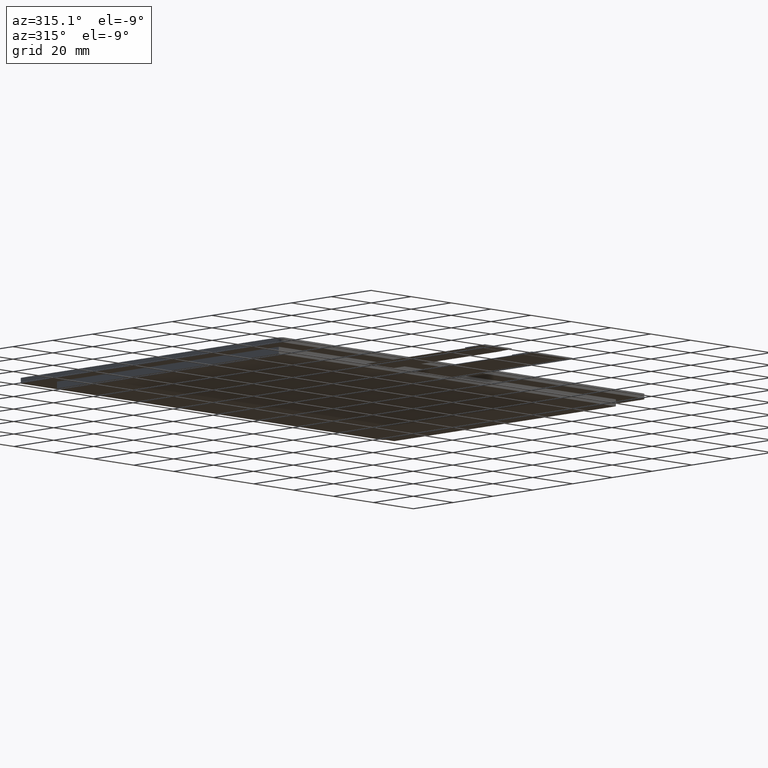
[diagram: clean part render]
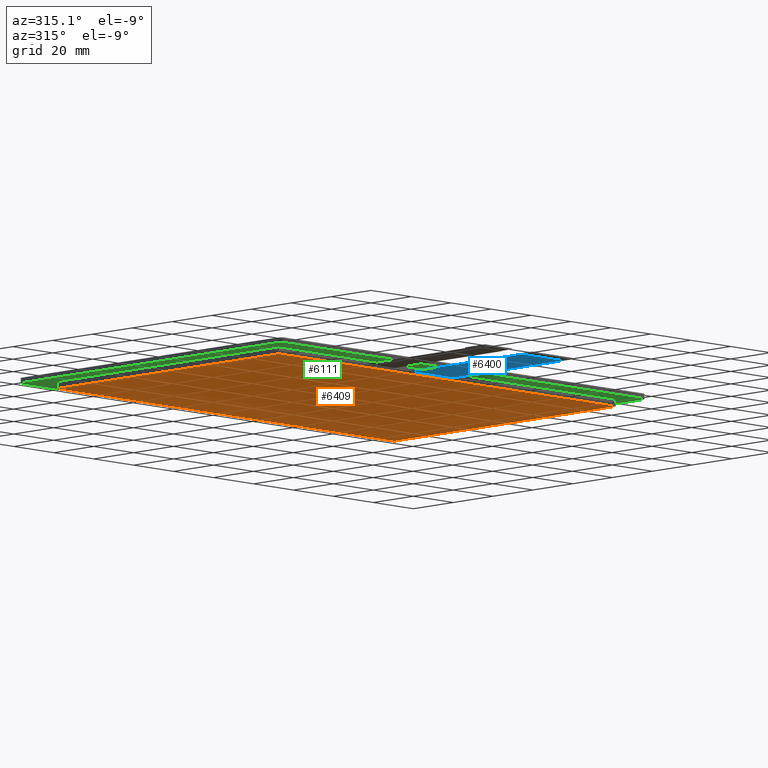
[diagram: same view with three faces highlighted in distinct colors, each labeled with its STEP entity id]
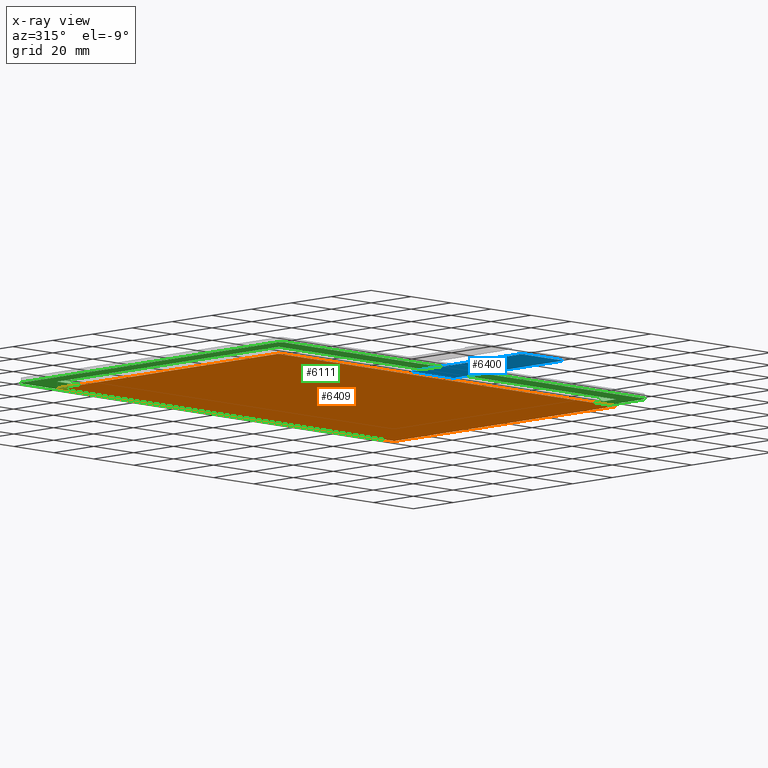
[diagram: x-ray of the same camera — body ghosted, the three highlighted faces saturated]
A machine part, auxiliary view with three faces highlighted in distinct colors.
The next image is the same camera in x-ray (body ghosted, the three faces saturated) — at least one of them is partly hidden behind the body in this view.
Their STEP definitions:

[orange] entity #6409 — the highlighted planar face has unit normal (0, 0, -1).
#355=FACE_OUTER_BOUND('',#667,.T.);
#667=EDGE_LOOP('',(#5754,#5755,#5756,#5757));
#1543=LINE('',#10078,#2431);
#1545=LINE('',#10082,#2433);
#1547=LINE('',#10086,#2435);
#1549=LINE('',#10089,#2437);
#2431=VECTOR('',#8261,10.);
#2433=VECTOR('',#8265,10.);
#2435=VECTOR('',#8269,10.);
#2437=VECTOR('',#8273,10.);
#3058=VERTEX_POINT('',#10075);
#3059=VERTEX_POINT('',#10077);
#3060=VERTEX_POINT('',#10081);
#3061=VERTEX_POINT('',#10085);
#3955=EDGE_CURVE('',#3059,#3058,#1543,.T.);
#3957=EDGE_CURVE('',#3060,#3059,#1545,.T.);
#3959=EDGE_CURVE('',#3061,#3060,#1547,.T.);
#3961=EDGE_CURVE('',#3058,#3061,#1549,.T.);
#5754=ORIENTED_EDGE('',*,*,#3961,.T.);
#5755=ORIENTED_EDGE('',*,*,#3959,.T.);
#5756=ORIENTED_EDGE('',*,*,#3957,.T.);
#5757=ORIENTED_EDGE('',*,*,#3955,.T.);
#6075=PLANE('',#6755);
#6409=ADVANCED_FACE('',(#355),#6075,.T.);
#6755=AXIS2_PLACEMENT_3D('',#10090,#8274,#8275);
#8261=DIRECTION('',(-1.59457525978478E-16,1.,0.));
#8265=DIRECTION('',(-1.,-1.57851614875615E-16,0.));
#8269=DIRECTION('',(0.,-1.,0.));
#8273=DIRECTION('',(1.,0.,0.));
#8274=DIRECTION('center_axis',(0.,0.,-1.));
#8275=DIRECTION('ref_axis',(-1.,0.,0.));
#10075=CARTESIAN_POINT('',(-84.5,53.68,-2.5));
#10077=CARTESIAN_POINT('',(-84.5,-57.72,-2.5));
#10078=CARTESIAN_POINT('',(-84.5,53.68,-2.5));
#10081=CARTESIAN_POINT('',(84.3,-57.72,-2.5));
#10082=CARTESIAN_POINT('',(-84.5,-57.72,-2.5));
#10085=CARTESIAN_POINT('',(84.3,53.68,-2.5));
#10086=CARTESIAN_POINT('',(84.3,-57.72,-2.5));
#10089=CARTESIAN_POINT('',(84.3,53.68,-2.5));
#10090=CARTESIAN_POINT('Origin',(-0.0999999999999801,-2.01999999999999,
-2.5));

[blue] entity #6400 — the highlighted planar face has unit normal (0, 0, -1).
#346=FACE_OUTER_BOUND('',#656,.T.);
#656=EDGE_LOOP('',(#5706,#5707,#5708,#5709));
#1512=LINE('',#10015,#2400);
#1523=LINE('',#10036,#2411);
#1532=LINE('',#10055,#2420);
#1536=LINE('',#10062,#2424);
#2400=VECTOR('',#8202,10.);
#2411=VECTOR('',#8217,10.);
#2420=VECTOR('',#8236,10.);
#2424=VECTOR('',#8244,10.);
#3040=VERTEX_POINT('',#10012);
#3041=VERTEX_POINT('',#10014);
#3049=VERTEX_POINT('',#10034);
#3054=VERTEX_POINT('',#10054);
#3924=EDGE_CURVE('',#3041,#3040,#1512,.T.);
#3935=EDGE_CURVE('',#3040,#3049,#1523,.T.);
#3944=EDGE_CURVE('',#3054,#3041,#1532,.T.);
#3948=EDGE_CURVE('',#3054,#3049,#1536,.T.);
#5706=ORIENTED_EDGE('',*,*,#3924,.T.);
#5707=ORIENTED_EDGE('',*,*,#3935,.T.);
#5708=ORIENTED_EDGE('',*,*,#3948,.F.);
#5709=ORIENTED_EDGE('',*,*,#3944,.T.);
#6066=PLANE('',#6746);
#6400=ADVANCED_FACE('',(#346),#6066,.T.);
#6746=AXIS2_PLACEMENT_3D('',#10061,#8242,#8243);
#8202=DIRECTION('',(-1.,0.,0.));
#8217=DIRECTION('',(-3.33066907387547E-16,1.,0.));
#8236=DIRECTION('',(2.22044604925031E-16,-1.,0.));
#8242=DIRECTION('center_axis',(0.,0.,-1.));
#8243=DIRECTION('ref_axis',(-1.,0.,0.));
#8244=DIRECTION('',(-1.,-1.57851614875615E-16,0.));
#10012=CARTESIAN_POINT('',(-17.5,-112.72,-1.35));
#10014=CARTESIAN_POINT('',(3.00000000000003,-112.72,-1.35));
#10015=CARTESIAN_POINT('',(-2.12499999999998,-112.72,-1.35));
#10034=CARTESIAN_POINT('',(-17.5,-57.72,-1.35));
#10036=CARTESIAN_POINT('',(-17.5,-57.72,-1.35));
#10054=CARTESIAN_POINT('',(3.00000000000002,-57.72,-1.35));
#10055=CARTESIAN_POINT('',(3.00000000000003,-117.72,-1.35));
#10061=CARTESIAN_POINT('Origin',(-7.24999999999998,-87.72,-1.35));
#10062=CARTESIAN_POINT('',(38.525,-57.72,-1.35));

[green] entity #6111 — the highlighted planar face has unit normal (0, 0, 1).
#51=FACE_BOUND('',#367,.T.);
#57=FACE_OUTER_BOUND('',#366,.T.);
#366=EDGE_LOOP('',(#3994,#3995,#3996,#3997,#3998,#3999,#4000,#4001));
#367=EDGE_LOOP('',(#4002,#4003,#4004,#4005));
#684=LINE('',#8334,#1572);
#686=LINE('',#8338,#1574);
#687=LINE('',#8342,#1575);
#688=LINE('',#8346,#1576);
#689=LINE('',#8350,#1577);
#690=LINE('',#8352,#1578);
#691=LINE('',#8354,#1579);
#692=LINE('',#8355,#1580);
#1572=VECTOR('',#6790,10.);
#1574=VECTOR('',#6794,10.);
#1575=VECTOR('',#6797,10.);
#1576=VECTOR('',#6800,10.);
#1577=VECTOR('',#6803,10.);
#1578=VECTOR('',#6804,10.);
#1579=VECTOR('',#6805,10.);
#1580=VECTOR('',#6806,10.);
#2454=CIRCLE('',#6444,2.);
#2455=CIRCLE('',#6447,2.);
#2456=CIRCLE('',#6448,2.);
#2457=CIRCLE('',#6449,2.);
#2478=VERTEX_POINT('',#8327);
#2479=VERTEX_POINT('',#8329);
#2480=VERTEX_POINT('',#8333);
#2481=VERTEX_POINT('',#8337);
#2482=VERTEX_POINT('',#8339);
#2483=VERTEX_POINT('',#8341);
#2484=VERTEX_POINT('',#8343);
#2485=VERTEX_POINT('',#8345);
#2486=VERTEX_POINT('',#8348);
#2487=VERTEX_POINT('',#8349);
#2488=VERTEX_POINT('',#8351);
#2489=VERTEX_POINT('',#8353);
#3083=EDGE_CURVE('',#2478,#2479,#2454,.T.);
#3085=EDGE_CURVE('',#2479,#2480,#684,.T.);
#3087=EDGE_CURVE('',#2481,#2478,#686,.T.);
#3088=EDGE_CURVE('',#2482,#2481,#2455,.T.);
#3089=EDGE_CURVE('',#2483,#2482,#687,.T.);
#3090=EDGE_CURVE('',#2484,#2483,#2456,.T.);
#3091=EDGE_CURVE('',#2485,#2484,#688,.T.);
#3092=EDGE_CURVE('',#2480,#2485,#2457,.T.);
#3093=EDGE_CURVE('',#2486,#2487,#689,.T.);
#3094=EDGE_CURVE('',#2487,#2488,#690,.T.);
#3095=EDGE_CURVE('',#2488,#2489,#691,.T.);
#3096=EDGE_CURVE('',#2489,#2486,#692,.T.);
#3994=ORIENTED_EDGE('',*,*,#3083,.F.);
#3995=ORIENTED_EDGE('',*,*,#3087,.F.);
#3996=ORIENTED_EDGE('',*,*,#3088,.F.);
#3997=ORIENTED_EDGE('',*,*,#3089,.F.);
#3998=ORIENTED_EDGE('',*,*,#3090,.F.);
#3999=ORIENTED_EDGE('',*,*,#3091,.F.);
#4000=ORIENTED_EDGE('',*,*,#3092,.F.);
#4001=ORIENTED_EDGE('',*,*,#3085,.F.);
#4002=ORIENTED_EDGE('',*,*,#3093,.T.);
#4003=ORIENTED_EDGE('',*,*,#3094,.T.);
#4004=ORIENTED_EDGE('',*,*,#3095,.T.);
#4005=ORIENTED_EDGE('',*,*,#3096,.T.);
#5784=PLANE('',#6446);
#6111=ADVANCED_FACE('',(#57,#51),#5784,.F.);
#6444=AXIS2_PLACEMENT_3D('',#8330,#6785,#6786);
#6446=AXIS2_PLACEMENT_3D('',#8336,#6792,#6793);
#6447=AXIS2_PLACEMENT_3D('',#8340,#6795,#6796);
#6448=AXIS2_PLACEMENT_3D('',#8344,#6798,#6799);
#6449=AXIS2_PLACEMENT_3D('',#8347,#6801,#6802);
#6785=DIRECTION('center_axis',(0.,0.,1.));
#6786=DIRECTION('ref_axis',(0.707106781186548,0.707106781186548,0.));
#6790=DIRECTION('',(-1.,0.,0.));
#6792=DIRECTION('center_axis',(0.,0.,1.));
#6793=DIRECTION('ref_axis',(1.,0.,0.));
#6794=DIRECTION('',(0.,1.,0.));
#6795=DIRECTION('center_axis',(0.,0.,1.));
#6796=DIRECTION('ref_axis',(0.707106781186548,-0.707106781186548,0.));
#6797=DIRECTION('',(1.,1.45523498585493E-16,0.));
#6798=DIRECTION('center_axis',(0.,0.,1.));
#6799=DIRECTION('ref_axis',(-0.707106781186544,-0.707106781186551,0.));
#6800=DIRECTION('',(2.69144975666705E-16,-1.,0.));
#6801=DIRECTION('center_axis',(0.,0.,1.));
#6802=DIRECTION('ref_axis',(-0.707106781186548,0.707106781186548,0.));
#6803=DIRECTION('',(1.59457525978478E-16,-1.,0.));
#6804=DIRECTION('',(1.,1.57851614875615E-16,0.));
#6805=DIRECTION('',(0.,1.,0.));
#6806=DIRECTION('',(-1.,0.,0.));
#8327=CARTESIAN_POINT('',(91.5,63.98,0.));
#8329=CARTESIAN_POINT('',(89.5,65.98,0.));
#8330=CARTESIAN_POINT('Origin',(89.5,63.98,0.));
#8333=CARTESIAN_POINT('',(-89.6,65.98,0.));
#8334=CARTESIAN_POINT('',(91.5,65.98,0.));
#8336=CARTESIAN_POINT('Origin',(-0.0500000000000078,-0.0199999999999845,
0.));
#8337=CARTESIAN_POINT('',(91.5,-64.02,0.));
#8338=CARTESIAN_POINT('',(91.5,-66.02,0.));
#8339=CARTESIAN_POINT('',(89.5,-66.02,0.));
#8340=CARTESIAN_POINT('Origin',(89.5,-64.02,0.));
#8341=CARTESIAN_POINT('',(-89.6,-66.02,0.));
#8342=CARTESIAN_POINT('',(-91.6,-66.02,0.));
#8343=CARTESIAN_POINT('',(-91.6,-64.02,0.));
#8344=CARTESIAN_POINT('Origin',(-89.6,-64.02,0.));
#8345=CARTESIAN_POINT('',(-91.6,63.98,0.));
#8346=CARTESIAN_POINT('',(-91.6,65.98,0.));
#8347=CARTESIAN_POINT('Origin',(-89.6,63.98,0.));
#8348=CARTESIAN_POINT('',(-84.5,53.68,0.));
#8349=CARTESIAN_POINT('',(-84.5,-57.72,0.));
#8350=CARTESIAN_POINT('',(-84.5,53.68,0.));
#8351=CARTESIAN_POINT('',(84.3,-57.72,0.));
#8352=CARTESIAN_POINT('',(-84.5,-57.72,0.));
#8353=CARTESIAN_POINT('',(84.3,53.68,0.));
#8354=CARTESIAN_POINT('',(84.3,-57.72,0.));
#8355=CARTESIAN_POINT('',(84.3,53.68,0.));